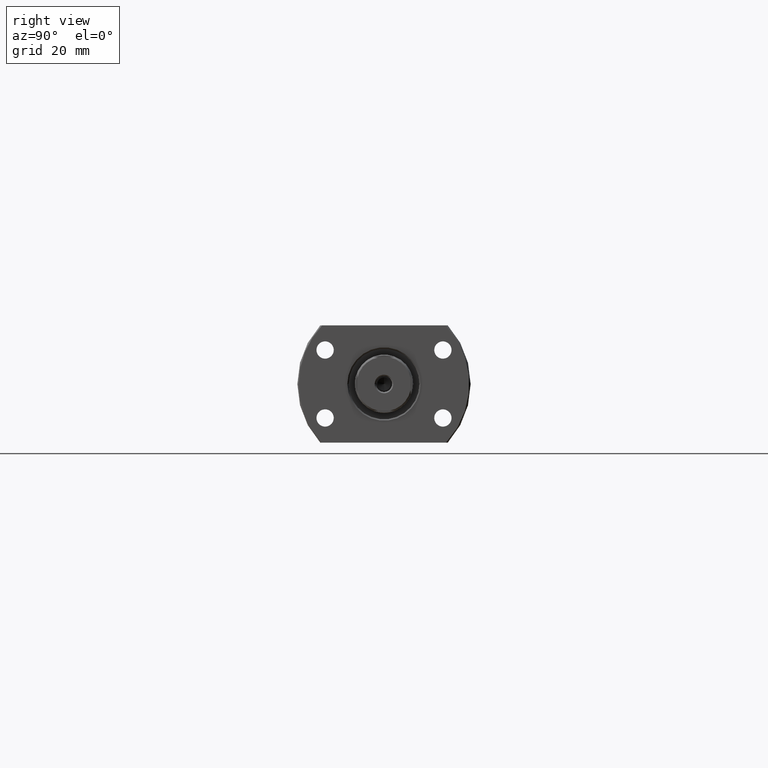
[diagram: clean part render]
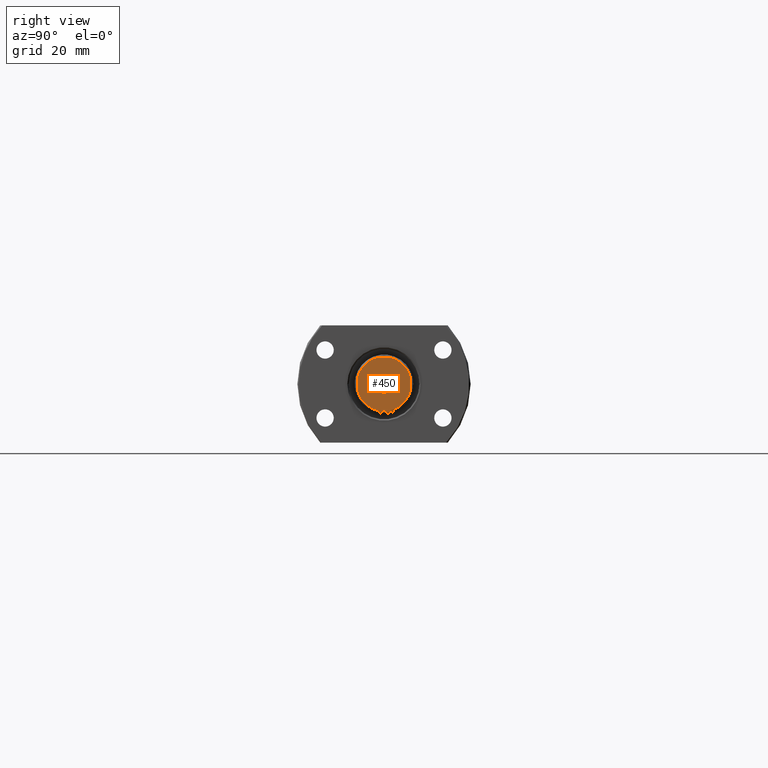
[diagram: same view with one face highlighted and labeled with its STEP entity id]
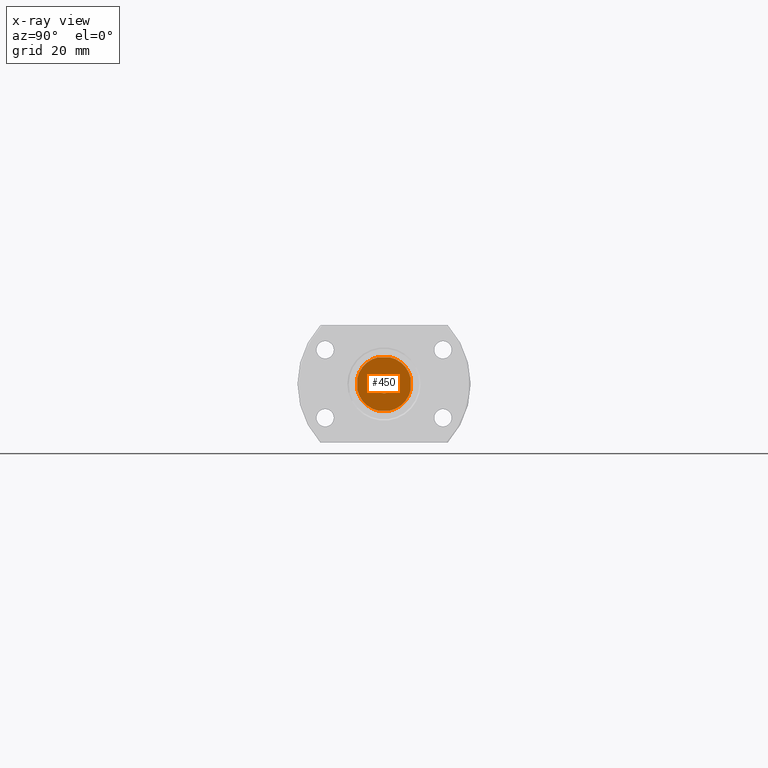
[diagram: x-ray of the same camera — body ghosted, the highlighted face saturated]
A machine part, right view. The second image highlights one B-rep face of the part: STEP entity #450.
The next image is the same camera in x-ray: the body ghosted, the highlighted face saturated — about 0% of this face is hidden behind the body in this view.
In plain terms, the highlighted planar face has unit normal (-1, -0, 0).
Its self-contained STEP definition (entity closure, byte-faithful):
#39 = EDGE_CURVE ( 'NONE', #1154, #3011, #2562, .T. ) ;
#52 = ORIENTED_EDGE ( 'NONE', *, *, #2878, .T. ) ;
#91 = CARTESIAN_POINT ( 'NONE',  ( 263.0000000000000568, 2.249999999999977796, 10.00000000000000000 ) ) ;
#94 = CARTESIAN_POINT ( 'NONE',  ( 263.0000000000000000, -4.358606422664567117E-12, 0.000000000000000000 ) ) ;
#95 = CARTESIAN_POINT ( 'NONE',  ( 262.9999999999999432, -3.944933459519237129, 9.999999999999998224 ) ) ;
#97 = ORIENTED_EDGE ( 'NONE', *, *, #2470, .T. ) ;
#150 = CIRCLE ( 'NONE', #2707, 10.24999999999999289 ) ;
#203 = VERTEX_POINT ( 'NONE', #1698 ) ;
#219 = DIRECTION ( 'NONE',  ( 1.000000000000000000, 1.069542322069065801E-17, 0.000000000000000000 ) ) ;
#273 = VERTEX_POINT ( 'NONE', #982 ) ;
#366 = EDGE_CURVE ( 'NONE', #2060, #1805, #675, .T. ) ;
#379 = CIRCLE ( 'NONE', #800, 10.24999999999997335 ) ;
#429 = CIRCLE ( 'NONE', #2251, 3.500000000001096900 ) ;
#450 = ADVANCED_FACE ( 'NONE', ( #1657, #978 ), #3217, .F. ) ;
#481 = DIRECTION ( 'NONE',  ( 0.000000000000000000, 2.198672669358806709E-16, -1.000000000000000000 ) ) ;
#482 = VECTOR ( 'NONE', #716, 1000.000000000000000 ) ;
#509 = VERTEX_POINT ( 'NONE', #614 ) ;
#614 = CARTESIAN_POINT ( 'NONE',  ( 262.9999999999999432, -2.249999999999876987, -10.00000000000000000 ) ) ;
#651 = DIRECTION ( 'NONE',  ( 0.000000000000000000, -1.000000000000000000, 0.000000000000000000 ) ) ;
#675 = CIRCLE ( 'NONE', #732, 3.500000000001096900 ) ;
#716 = DIRECTION ( 'NONE',  ( 0.000000000000000000, -6.596018008076419881E-16, 1.000000000000000000 ) ) ;
#732 = AXIS2_PLACEMENT_3D ( 'NONE', #94, #2047, #651 ) ;
#775 = CARTESIAN_POINT ( 'NONE',  ( 262.9999999999998295, -10.00000000000435385, -3.944933459514880614 ) ) ;
#796 = ORIENTED_EDGE ( 'NONE', *, *, #3116, .T. ) ;
#800 = AXIS2_PLACEMENT_3D ( 'NONE', #3209, #2042, #2795 ) ;
#856 = VECTOR ( 'NONE', #923, 1000.000000000000000 ) ;
#857 = DIRECTION ( 'NONE',  ( -1.000000000000000000, -1.069542322069065801E-17, -0.000000000000000000 ) ) ;
#871 = CARTESIAN_POINT ( 'NONE',  ( 263.0000000000000000, -4.358606422664567117E-12, 0.000000000000000000 ) ) ;
#923 = DIRECTION ( 'NONE',  ( -1.407150508389636294E-14, -1.000000000000000000, -4.397345338717613418E-16 ) ) ;
#978 = FACE_OUTER_BOUND ( 'NONE', #2010, .T. ) ;
#982 = CARTESIAN_POINT ( 'NONE',  ( 263.0000000000000568, 2.249999999999984901, -9.999999999999996447 ) ) ;
#1086 = ORIENTED_EDGE ( 'NONE', *, *, #2038, .T. ) ;
#1135 = CARTESIAN_POINT ( 'NONE',  ( 263.0000000000000000, 3.499999999996732392, 0.000000000000000000 ) ) ;
#1154 = VERTEX_POINT ( 'NONE', #2763 ) ;
#1180 = ORIENTED_EDGE ( 'NONE', *, *, #2240, .F. ) ;
#1185 = ORIENTED_EDGE ( 'NONE', *, *, #2699, .T. ) ;
#1203 = VECTOR ( 'NONE', #2774, 1000.000000000000000 ) ;
#1273 = CIRCLE ( 'NONE', #2915, 10.24999999999995381 ) ;
#1337 = ORIENTED_EDGE ( 'NONE', *, *, #39, .F. ) ;
#1380 = LINE ( 'NONE', #1940, #856 ) ;
#1657 = FACE_BOUND ( 'NONE', #2237, .T. ) ;
#1698 = CARTESIAN_POINT ( 'NONE',  ( 263.0000000000000000, 9.999999999995640820, 2.250000000019359625 ) ) ;
#1735 = CARTESIAN_POINT ( 'NONE',  ( 263.0000000000000000, -3.500000000005577316, 4.286263797017229021E-16 ) ) ;
#1747 = DIRECTION ( 'NONE',  ( 0.000000000000000000, -1.000000000000000000, 0.000000000000000000 ) ) ;
#1767 = ORIENTED_EDGE ( 'NONE', *, *, #3082, .F. ) ;
#1773 = CARTESIAN_POINT ( 'NONE',  ( 262.9999999999998295, -10.00000000000435740, 2.249999999980406784 ) ) ;
#1805 = VERTEX_POINT ( 'NONE', #1135 ) ;
#1814 = ORIENTED_EDGE ( 'NONE', *, *, #366, .T. ) ;
#1836 = DIRECTION ( 'NONE',  ( 0.000000000000000000, -1.000000000000000000, 0.000000000000000000 ) ) ;
#1905 = CARTESIAN_POINT ( 'NONE',  ( 263.0000000000000000, 2.812896307041643304E-15, 0.000000000000000000 ) ) ;
#1922 = VERTEX_POINT ( 'NONE', #2636 ) ;
#1940 = CARTESIAN_POINT ( 'NONE',  ( 263.0000000000000568, 3.944933459510520102, -9.999999999999996447 ) ) ;
#1951 = LINE ( 'NONE', #775, #482 ) ;
#1954 = DIRECTION ( 'NONE',  ( 1.069542322069065801E-17, -1.000000000000000000, 0.000000000000000000 ) ) ;
#1980 = AXIS2_PLACEMENT_3D ( 'NONE', #2766, #2306, #2789 ) ;
#1997 = EDGE_CURVE ( 'NONE', #203, #1922, #2705, .T. ) ;
#2010 = EDGE_LOOP ( 'NONE', ( #1767, #97, #3043, #1086, #1337, #796, #1180, #52 ) ) ;
#2038 = EDGE_CURVE ( 'NONE', #203, #3011, #150, .T. ) ;
#2042 = DIRECTION ( 'NONE',  ( 1.000000000000000000, 1.069542322069065801E-17, 0.000000000000000000 ) ) ;
#2047 = DIRECTION ( 'NONE',  ( -1.000000000000000000, -1.069542322069065801E-17, -0.000000000000000000 ) ) ;
#2060 = VERTEX_POINT ( 'NONE', #1735 ) ;
#2237 = EDGE_LOOP ( 'NONE', ( #1185, #1814 ) ) ;
#2240 = EDGE_CURVE ( 'NONE', #2564, #3195, #1951, .T. ) ;
#2251 = AXIS2_PLACEMENT_3D ( 'NONE', #871, #857, #1836 ) ;
#2284 = VECTOR ( 'NONE', #481, 1000.000000000000000 ) ;
#2306 = DIRECTION ( 'NONE',  ( 1.000000000000000000, 1.069542322069065801E-17, 0.000000000000000000 ) ) ;
#2381 = DIRECTION ( 'NONE',  ( -1.000000000000000000, -1.069542322069065801E-17, 0.000000000000000000 ) ) ;
#2456 = CARTESIAN_POINT ( 'NONE',  ( 263.0000000000001705, 9.999999999995640820, 3.944933459514878837 ) ) ;
#2470 = EDGE_CURVE ( 'NONE', #273, #1922, #2969, .T. ) ;
#2562 = LINE ( 'NONE', #95, #1203 ) ;
#2564 = VERTEX_POINT ( 'NONE', #2592 ) ;
#2592 = CARTESIAN_POINT ( 'NONE',  ( 263.0000000000000000, -10.00000000000435385, -2.249999999980507592 ) ) ;
#2636 = CARTESIAN_POINT ( 'NONE',  ( 263.0000000000001705, 9.999999999995642597, -2.250000000019354740 ) ) ;
#2699 = EDGE_CURVE ( 'NONE', #1805, #2060, #429, .T. ) ;
#2705 = LINE ( 'NONE', #2456, #2284 ) ;
#2707 = AXIS2_PLACEMENT_3D ( 'NONE', #2933, #219, #1747 ) ;
#2763 = CARTESIAN_POINT ( 'NONE',  ( 262.9999999999999432, -2.249999999999787281, 10.00000000000000000 ) ) ;
#2766 = CARTESIAN_POINT ( 'NONE',  ( 263.0000000000000000, 2.812896307041643304E-15, 0.000000000000000000 ) ) ;
#2774 = DIRECTION ( 'NONE',  ( 1.407150508389636294E-14, 1.000000000000000000, 2.198672669358806709E-16 ) ) ;
#2789 = DIRECTION ( 'NONE',  ( 0.000000000000000000, -1.000000000000000000, 0.000000000000000000 ) ) ;
#2795 = DIRECTION ( 'NONE',  ( 0.000000000000000000, -1.000000000000000000, 0.000000000000000000 ) ) ;
#2874 = DIRECTION ( 'NONE',  ( 0.000000000000000000, -1.000000000000000000, 2.664535259100375697E-15 ) ) ;
#2878 = EDGE_CURVE ( 'NONE', #2564, #509, #379, .T. ) ;
#2904 = CARTESIAN_POINT ( 'NONE',  ( 263.0000000000000000, -6.148574185495778962E-34, 0.000000000000000000 ) ) ;
#2915 = AXIS2_PLACEMENT_3D ( 'NONE', #1905, #3120, #2874 ) ;
#2933 = CARTESIAN_POINT ( 'NONE',  ( 263.0000000000000000, 2.812896307041643304E-15, 0.000000000000000000 ) ) ;
#2962 = AXIS2_PLACEMENT_3D ( 'NONE', #2904, #2381, #1954 ) ;
#2969 = CIRCLE ( 'NONE', #1980, 10.24999999999999289 ) ;
#3011 = VERTEX_POINT ( 'NONE', #91 ) ;
#3043 = ORIENTED_EDGE ( 'NONE', *, *, #1997, .F. ) ;
#3082 = EDGE_CURVE ( 'NONE', #273, #509, #1380, .T. ) ;
#3116 = EDGE_CURVE ( 'NONE', #1154, #3195, #1273, .T. ) ;
#3120 = DIRECTION ( 'NONE',  ( 1.000000000000000000, 1.069542322069065801E-17, 0.000000000000000000 ) ) ;
#3195 = VERTEX_POINT ( 'NONE', #1773 ) ;
#3209 = CARTESIAN_POINT ( 'NONE',  ( 263.0000000000000000, 2.812896307041643304E-15, 0.000000000000000000 ) ) ;
#3217 = PLANE ( 'NONE',  #2962 ) ;